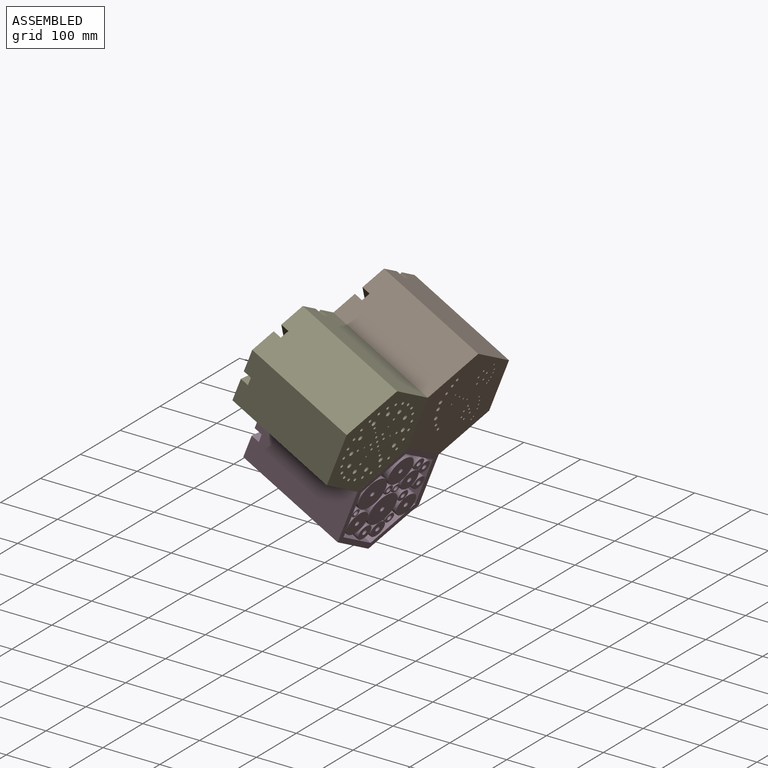
[diagram: assembled view]
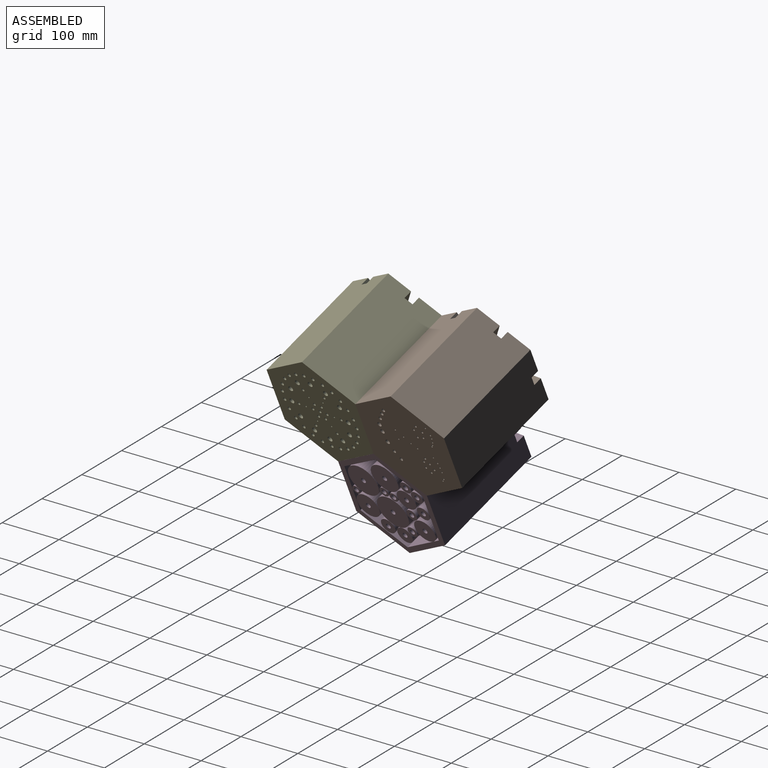
[diagram: assembled view, second angle]
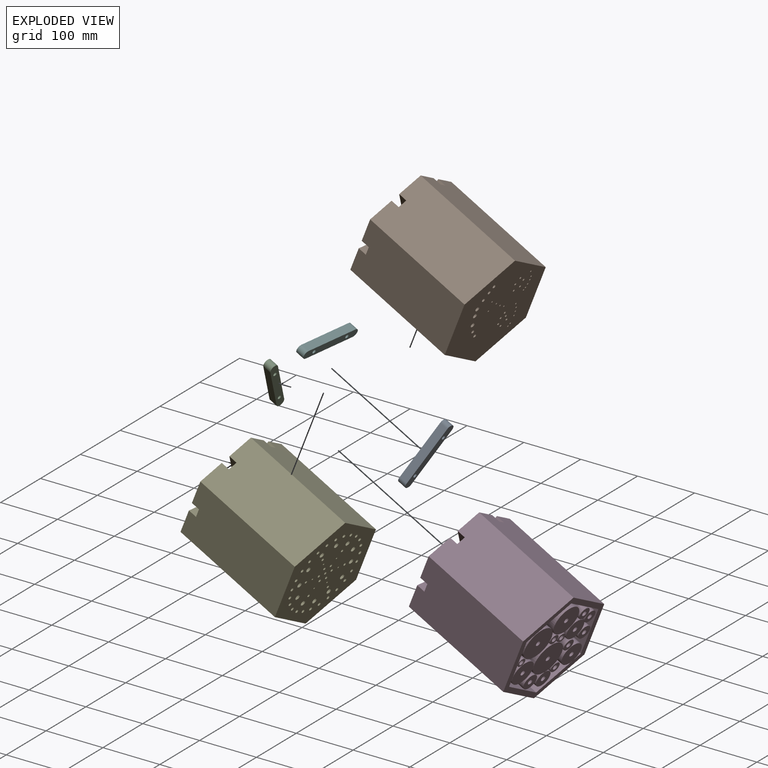
[diagram: exploded view]
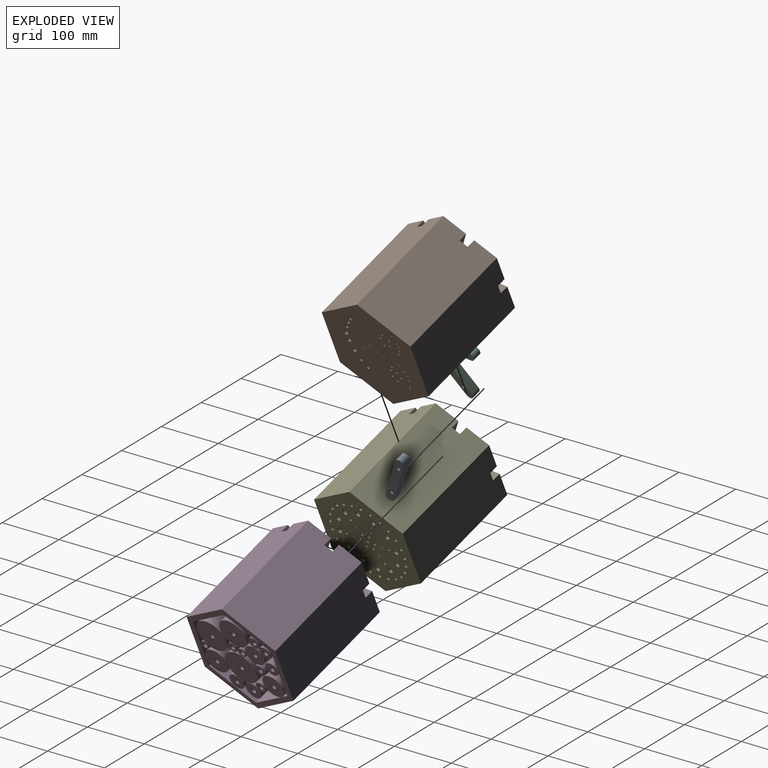
[diagram: exploded view, second angle]
ASSEMBLY  parts=6 mates=10
PART A: 10 faces, bbox 115x15x15 mm
  f0: plane 100x15mm, normal (0,1,0), area 1500mm2, adj f1,f3,f4,f5
  f1: cylinder r=7.5mm len=15mm, axis (0,0,-1), area 353.4mm2, adj f0,f2,f4,f5
  f2: plane 100x15mm, normal (0,-1,0), area 1500mm2, adj f1,f3,f4,f5
  f3: cylinder r=7.5mm len=15mm, axis (0,0,-1), area 353.4mm2, adj f0,f2,f4,f5
  f4: plane 115x15mm, normal (0,0,1), area 1556.3mm2, adj f0,f1,f2,f3,f8,f9
  f5: plane 115x15mm, normal (0,0,-1), area 1605mm2, adj f0,f1,f2,f3,f6,f7
  f6: cylinder r=3.38mm len=14mm, axis (0,0,1), area 297.2mm2, adj f5,f8
  f7: cylinder r=3.38mm len=14mm, axis (0,0,1), area 297.2mm2, adj f5,f9
  f8: cone r=3.38mm half-angle=45deg, axis (0,0,1), area 34.5mm2, adj f4,f6
  f9: cone r=3.38mm half-angle=45deg, axis (0,0,1), area 34.5mm2, adj f4,f7
PART B: 116 faces, bbox 200x173.2x200 mm
  f0: plane 200x100mm, normal (0,-1,0), area 19775mm2, adj f1,f2,f6,f7,f84,f85,f86
  f1: plane 200x173.21mm, normal (0,0,-1), area 20945.9mm2, adj f0,f2,f3,f4,f5,f6,f80,f81
  f2: plane 200x86.6mm, normal (0.87,-0.5,0), area 19775mm2, adj f0,f1,f3,f7,f89,f90,f91
  f3: plane 200x86.6mm, normal (0.87,0.5,0), area 19775mm2, adj f1,f2,f4,f7,f93,f94,f95
  f4: plane 200x100mm, normal (0,1,0), area 19775mm2, adj f1,f3,f5,f7,f97,f98,f99
  f5: plane 200x86.6mm, normal (-0.87,0.5,0), area 19775mm2, adj f1,f4,f6,f7,f101,f102,f103
  f6: plane 200x86.6mm, normal (-0.87,-0.5,0), area 19775mm2, adj f0,f1,f5,f7,f81,f82,f83
  f7: plane 200x173.21mm, normal (0,0,1), area 25430.2mm2, adj f0,f2,f3,f4,f5,f6,f9,f11
  f8: cone r=0mm half-angle=59deg, axis (0,0,1), area 8.2mm2, adj f9
  f9: cylinder r=1.5mm len=170mm, axis (0,0,1), area 1602.2mm2, adj f7,f8
  f10: cone r=0mm half-angle=59deg, axis (0,0,1), area 8.2mm2, adj f11
  f11: cylinder r=1.5mm len=170mm, axis (0,0,1), area 1602.2mm2, adj f7,f10
  f12: cone r=0mm half-angle=59deg, axis (0,0,1), area 8.2mm2, adj f13
  f13: cylinder r=1.5mm len=170mm, axis (0,0,1), area 1602.2mm2, adj f7,f12
  f14: cone r=0mm half-angle=59deg, axis (0,0,1), area 8.2mm2, adj f15
  f15: cylinder r=1.5mm len=170mm, axis (0,0,1), area 1602.2mm2, adj f7,f14
  f16: cone r=0mm half-angle=59deg, axis (0,0,1), area 8.2mm2, adj f17
  f17: cylinder r=1.5mm len=170mm, axis (0,0,1), area 1602.2mm2, adj f7,f16
  f18: cone r=0mm half-angle=59deg, axis (0,0,1), area 8.2mm2, adj f19
  f19: cylinder r=1.5mm len=170mm, axis (0,0,1), area 1602.2mm2, adj f7,f18
  f20: cone r=0mm half-angle=59deg, axis (0,0,1), area 8.2mm2, adj f21
  f21: cylinder r=1.5mm len=170mm, axis (0,0,1), area 1602.2mm2, adj f7,f20
  f22: cone r=0mm half-angle=59deg, axis (0,0,1), area 8.2mm2, adj f23
  f23: cylinder r=1.5mm len=170mm, axis (0,0,1), area 1602.2mm2, adj f7,f22
  f24: cone r=0mm half-angle=59deg, axis (0,0,1), area 8.2mm2, adj f25
  f25: cylinder r=1.5mm len=170mm, axis (0,0,1), area 1602.2mm2, adj f7,f24
  f26: cone r=0mm half-angle=59deg, axis (0,0,1), area 8.2mm2, adj f27
  f27: cylinder r=1.5mm len=170mm, axis (0,0,1), area 1602.2mm2, adj f7,f26
  f28: cone r=0mm half-angle=59deg, axis (0,0,1), area 8.2mm2, adj f29
  f29: cylinder r=1.5mm len=170mm, axis (0,0,1), area 1602.2mm2, adj f7,f28
  f30: cone r=0mm half-angle=59deg, axis (0,0,1), area 8.2mm2, adj f31
  f31: cylinder r=1.5mm len=170mm, axis (0,0,1), area 1602.2mm2, adj f7,f30
  f32: cone r=0mm half-angle=59deg, axis (0,0,1), area 8.2mm2, adj f33
  f33: cylinder r=1.5mm len=170mm, axis (0,0,1), area 1602.2mm2, adj f7,f32
  f34: cone r=0mm half-angle=59deg, axis (0,0,1), area 8.2mm2, adj f35
  f35: cylinder r=1.5mm len=170mm, axis (0,0,1), area 1602.2mm2, adj f7,f34
  f36: cone r=0mm half-angle=59deg, axis (0,0,1), area 8.2mm2, adj f37
  f37: cylinder r=1.5mm len=170mm, axis (0,0,1), area 1602.2mm2, adj f7,f36
  f38: cone r=0mm half-angle=59deg, axis (0,0,1), area 8.2mm2, adj f39
  f39: cylinder r=1.5mm len=170mm, axis (0,0,1), area 1602.2mm2, adj f7,f38
  f40: cone r=0mm half-angle=59deg, axis (0,0,1), area 8.2mm2, adj f41
  f41: cylinder r=1.5mm len=170mm, axis (0,0,1), area 1602.2mm2, adj f7,f40
  f42: cone r=0mm half-angle=59deg, axis (0,0,1), area 14.7mm2, adj f43
  f43: cylinder r=2mm len=170mm, axis (0,0,1), area 2136.3mm2, adj f7,f42
  f44: cone r=0mm half-angle=59deg, axis (0,0,1), area 14.7mm2, adj f45
  f45: cylinder r=2mm len=170mm, axis (0,0,1), area 2136.3mm2, adj f7,f44
  f46: cone r=0mm half-angle=59deg, axis (0,0,1), area 14.7mm2, adj f47
  f47: cylinder r=2mm len=170mm, axis (0,0,1), area 2136.3mm2, adj f7,f46
  f48: cone r=0mm half-angle=59deg, axis (0,0,1), area 14.7mm2, adj f49
  f49: cylinder r=2mm len=170mm, axis (0,0,1), area 2136.3mm2, adj f7,f48
  f50: cone r=0mm half-angle=59deg, axis (0,0,1), area 14.7mm2, adj f51
  f51: cylinder r=2mm len=170mm, axis (0,0,1), area 2136.3mm2, adj f7,f50
  f52: cone r=0mm half-angle=59deg, axis (0,0,1), area 14.7mm2, adj f53
  f53: cylinder r=2mm len=170mm, axis (0,0,1), area 2136.3mm2, adj f7,f52
  f54: cone r=0mm half-angle=59deg, axis (0,0,1), area 14.7mm2, adj f55
  f55: cylinder r=2mm len=170mm, axis (0,0,1), area 2136.3mm2, adj f7,f54
  f56: cone r=0mm half-angle=59deg, axis (0,0,1), area 14.7mm2, adj f57
  f57: cylinder r=2mm len=170mm, axis (0,0,1), area 2136.3mm2, adj f7,f56
  f58: cone r=0mm half-angle=59deg, axis (0,0,1), area 14.7mm2, adj f59
  f59: cylinder r=2mm len=170mm, axis (0,0,1), area 2136.3mm2, adj f7,f58
  f60: cone r=0mm half-angle=59deg, axis (0,0,1), area 14.7mm2, adj f61
  f61: cylinder r=2mm len=170mm, axis (0,0,1), area 2136.3mm2, adj f7,f60
  f62: cone r=0mm half-angle=59deg, axis (0,0,1), area 14.7mm2, adj f63
  f63: cylinder r=2mm len=170mm, axis (0,0,1), area 2136.3mm2, adj f7,f62
  f64: cone r=0mm half-angle=59deg, axis (0,0,1), area 33mm2, adj f65
  f65: cylinder r=3mm len=170mm, axis (0,0,1), area 3204.4mm2, adj f7,f64
  f66: cone r=0mm half-angle=59deg, axis (0,0,1), area 33mm2, adj f67
  f67: cylinder r=3mm len=170mm, axis (0,0,1), area 3204.4mm2, adj f7,f66
  f68: cone r=0mm half-angle=59deg, axis (0,0,1), area 33mm2, adj f69
  f69: cylinder r=3mm len=170mm, axis (0,0,1), area 3204.4mm2, adj f7,f68
  f70: cone r=0mm half-angle=59deg, axis (0,0,1), area 33mm2, adj f71
  f71: cylinder r=3mm len=170mm, axis (0,0,1), area 3204.4mm2, adj f7,f70
  f72: cone r=0mm half-angle=59deg, axis (0,0,1), area 33mm2, adj f73
  f73: cylinder r=3mm len=170mm, axis (0,0,1), area 3204.4mm2, adj f7,f72
  f74: cone r=0mm half-angle=59deg, axis (0,0,1), area 58.6mm2, adj f75
  f75: cylinder r=4mm len=170mm, axis (0,0,1), area 4272.6mm2, adj f7,f74
  f76: cone r=0mm half-angle=59deg, axis (0,0,1), area 58.6mm2, adj f77
  f77: cylinder r=4mm len=170mm, axis (0,0,1), area 4272.6mm2, adj f7,f76
  f78: cone r=0mm half-angle=59deg, axis (0,0,1), area 58.6mm2, adj f79
  f79: cylinder r=4mm len=170mm, axis (0,0,1), area 4272.6mm2, adj f7,f78
  f80: cylinder r=7.5mm len=15mm, axis (0,0,-1), area 353.4mm2, adj f1,f81,f82,f83
  f81: plane 43.31x25mm, normal (-0.5,0.87,0), area 750.1mm2, adj f1,f6,f80,f83
  f82: plane 43.31x25mm, normal (0.5,-0.87,0), area 750.1mm2, adj f1,f6,f80,f83
  f83: plane 54.56x39mm, normal (0,0,-1), area 818.8mm2, adj f6,f80,f81,f82,f115
  f84: plane 50.01x15mm, normal (1,0,0), area 750.2mm2, adj f0,f1,f86,f87
  f85: plane 50x15mm, normal (-1,0,0), area 750.1mm2, adj f0,f1,f86,f87
  f86: plane 57.51x15.02mm, normal (0,0,-1), area 818.8mm2, adj f0,f84,f85,f87,f113
  f87: cylinder r=7.5mm len=15mm, axis (0,0,-1), area 353.4mm2, adj f1,f84,f85,f86
  f88: cylinder r=7.55mm len=15mm, axis (0,0,-1), area 383.2mm2, adj f1,f89,f90,f91
  f89: plane 42.52x24.55mm, normal (-0.5,-0.87,0), area 736.5mm2, adj f1,f2,f88,f91
  f90: plane 42.52x24.55mm, normal (0.5,0.87,0), area 736.5mm2, adj f1,f2,f88,f91
  f91: plane 54.61x39.05mm, normal (0,0,-1), area 820.2mm2, adj f2,f88,f89,f90,f111
  f92: cylinder r=7.55mm len=15mm, axis (0,0,-1), area 356mm2, adj f1,f93,f94,f95
  f93: plane 42.52x24.55mm, normal (0.5,-0.87,0), area 736.5mm2, adj f1,f3,f92,f95
  f94: plane 44.09x25.46mm, normal (-0.5,0.87,0), area 763.7mm2, adj f1,f3,f92,f95
  f95: plane 54.61x39.05mm, normal (0,0,-1), area 820.1mm2, adj f3,f92,f93,f94,f109
  f96: cylinder r=7.55mm len=15.11mm, axis (0,0,-1), area 383.2mm2, adj f1,f97,f98,f99
  f97: plane 49.1x15mm, normal (1,0,0), area 736.5mm2, adj f1,f4,f96,f99
  f98: plane 49.1x15mm, normal (-1,0,0), area 736.5mm2, adj f1,f4,f96,f99
  f99: plane 57.56x15.11mm, normal (0,0,-1), area 820.2mm2, adj f4,f96,f97,f98,f107
  f100: cylinder r=7.5mm len=15mm, axis (0,0,-1), area 353.4mm2, adj f1,f101,f102,f103
  f101: plane 43.31x25mm, normal (0.5,0.87,0), area 750.1mm2, adj f1,f5,f100,f103
  f102: plane 43.31x25mm, normal (-0.5,-0.87,0), area 750.1mm2, adj f1,f5,f100,f103
  f103: plane 54.56x39mm, normal (0,0,-1), area 818.8mm2, adj f5,f100,f101,f102,f105
  f104: cone r=0mm half-angle=59deg, axis (0,0,-1), area 22.9mm2, adj f105
  f105: cylinder r=2.5mm len=8mm, axis (0,0,-1), area 125.7mm2, adj f103,f104
  f106: cone r=0mm half-angle=59deg, axis (0,0,-1), area 22.9mm2, adj f107
  f107: cylinder r=2.5mm len=8mm, axis (0,0,-1), area 125.7mm2, adj f99,f106
  f108: cone r=0mm half-angle=59deg, axis (0,0,-1), area 22.9mm2, adj f109
  f109: cylinder r=2.5mm len=8mm, axis (0,0,-1), area 125.7mm2, adj f95,f108
  f110: cone r=0mm half-angle=59deg, axis (0,0,-1), area 22.9mm2, adj f111
  f111: cylinder r=2.5mm len=8mm, axis (0,0,-1), area 125.7mm2, adj f91,f110
  f112: cone r=0mm half-angle=59deg, axis (0,0,-1), area 22.9mm2, adj f113
  f113: cylinder r=2.5mm len=8mm, axis (0,0,-1), area 125.7mm2, adj f86,f112
  f114: cone r=0mm half-angle=59deg, axis (0,0,-1), area 22.9mm2, adj f115
  f115: cylinder r=2.5mm len=8mm, axis (0,0,-1), area 125.7mm2, adj f83,f114
PART C: same geometry as A
PART D: 115 faces, bbox 200x173.2x200 mm
  f0: plane 43x43mm, normal (0,0,1), area 1388.6mm2, adj f1,f2
  f1: cylinder r=21.5mm len=170mm, axis (0,0,-1), area 22965mm2, adj f0,f22
  f2: cylinder r=4.5mm len=170mm, axis (0,0,-1), area 4806.6mm2, adj f0,f3
  f3: plane 9x9mm, normal (0,0,1), area 63.6mm2, adj f2
  f4: plane 57x57mm, normal (0,0,1), area 2488.1mm2, adj f5,f6
  f5: cylinder r=28.5mm len=170mm, axis (0,0,-1), area 30442mm2, adj f4,f22
  f6: cylinder r=4.5mm len=170mm, axis (0,0,-1), area 4806.6mm2, adj f4,f7
  f7: plane 9x9mm, normal (0,0,1), area 63.6mm2, adj f6
  f8: plane 200x100mm, normal (0,-1,0), area 19775mm2, adj f9,f10,f14,f15,f27,f28,f29
  f9: plane 200x173.21mm, normal (0,0,-1), area 20945.9mm2, adj f8,f10,f11,f12,f13,f14,f23,f24
  f10: plane 200x86.6mm, normal (0.87,-0.5,0), area 19775mm2, adj f8,f9,f11,f15,f32,f33,f34
  f11: plane 200x86.6mm, normal (0.87,0.5,0), area 19775mm2, adj f9,f10,f12,f15,f36,f37,f38
  f12: plane 200x100mm, normal (0,1,0), area 19775mm2, adj f9,f11,f13,f15,f40,f41,f42
  f13: plane 200x86.6mm, normal (-0.87,0.5,0), area 19775mm2, adj f9,f12,f14,f15,f44,f45,f46
  f14: plane 200x86.6mm, normal (-0.87,-0.5,0), area 19775mm2, adj f8,f9,f13,f15,f24,f25,f26
  f15: plane 200x173.21mm, normal (0,0,1), area 5653.6mm2, adj f8,f10,f11,f12,f13,f14,f16,f17
  f16: plane 170x76.6mm, normal (0.87,0.5,0), area 15037mm2, adj f15,f17,f21,f22
  f17: plane 170x88.45mm, normal (0,1,0), area 15037mm2, adj f15,f16,f18,f22
  f18: plane 170x76.6mm, normal (-0.87,0.5,0), area 15037mm2, adj f15,f17,f19,f22
  f19: plane 170x76.6mm, normal (-0.87,-0.5,0), area 15037mm2, adj f15,f18,f20,f22
  f20: plane 170x88.45mm, normal (0,-1,0), area 15037mm2, adj f15,f19,f21,f22
  f21: plane 170x76.6mm, normal (0.87,-0.5,0), area 15037mm2, adj f15,f16,f20,f22
  f22: plane 176.91x153.21mm, normal (0,0,1), area 5699.3mm2, adj f1,f5,f16,f17,f18,f19,f20,f21
  f23: cylinder r=7.5mm len=15mm, axis (0,0,-1), area 353.4mm2, adj f9,f24,f25,f26
  f24: plane 43.31x25mm, normal (-0.5,0.87,0), area 750.1mm2, adj f9,f14,f23,f26
  f25: plane 43.31x25mm, normal (0.5,-0.87,0), area 750.1mm2, adj f9,f14,f23,f26
  f26: plane 54.56x39mm, normal (0,0,-1), area 818.8mm2, adj f14,f23,f24,f25,f58
  f27: plane 50.01x15mm, normal (1,0,0), area 750.2mm2, adj f8,f9,f29,f30
  f28: plane 50x15mm, normal (-1,0,0), area 750.1mm2, adj f8,f9,f29,f30
  f29: plane 57.51x15.02mm, normal (0,0,-1), area 818.8mm2, adj f8,f27,f28,f30,f56
  f30: cylinder r=7.5mm len=15mm, axis (0,0,-1), area 353.4mm2, adj f9,f27,f28,f29
  f31: cylinder r=7.55mm len=15mm, axis (0,0,-1), area 383.2mm2, adj f9,f32,f33,f34
  f32: plane 42.52x24.55mm, normal (-0.5,-0.87,0), area 736.5mm2, adj f9,f10,f31,f34
  f33: plane 42.52x24.55mm, normal (0.5,0.87,0), area 736.5mm2, adj f9,f10,f31,f34
  f34: plane 54.61x39.05mm, normal (0,0,-1), area 820.2mm2, adj f10,f31,f32,f33,f54
  f35: cylinder r=7.55mm len=15mm, axis (0,0,-1), area 356mm2, adj f9,f36,f37,f38
  f36: plane 42.52x24.55mm, normal (0.5,-0.87,0), area 736.5mm2, adj f9,f11,f35,f38
  f37: plane 44.09x25.46mm, normal (-0.5,0.87,0), area 763.7mm2, adj f9,f11,f35,f38
  f38: plane 54.61x39.05mm, normal (0,0,-1), area 820.1mm2, adj f11,f35,f36,f37,f52
  f39: cylinder r=7.55mm len=15.11mm, axis (0,0,-1), area 383.2mm2, adj f9,f40,f41,f42
  f40: plane 49.1x15mm, normal (1,0,0), area 736.5mm2, adj f9,f12,f39,f42
  f41: plane 49.1x15mm, normal (-1,0,0), area 736.5mm2, adj f9,f12,f39,f42
  f42: plane 57.56x15.11mm, normal (0,0,-1), area 820.2mm2, adj f12,f39,f40,f41,f50
  f43: cylinder r=7.5mm len=15mm, axis (0,0,-1), area 353.4mm2, adj f9,f44,f45,f46
  f44: plane 43.31x25mm, normal (0.5,0.87,0), area 750.1mm2, adj f9,f13,f43,f46
  f45: plane 43.31x25mm, normal (-0.5,-0.87,0), area 750.1mm2, adj f9,f13,f43,f46
  f46: plane 54.56x39mm, normal (0,0,-1), area 818.8mm2, adj f13,f43,f44,f45,f48
  f47: cone r=0mm half-angle=59deg, axis (0,0,-1), area 22.9mm2, adj f48
  f48: cylinder r=2.5mm len=8mm, axis (0,0,-1), area 125.7mm2, adj f46,f47
  f49: cone r=0mm half-angle=59deg, axis (0,0,-1), area 22.9mm2, adj f50
  f50: cylinder r=2.5mm len=8mm, axis (0,0,-1), area 125.7mm2, adj f42,f49
  f51: cone r=0mm half-angle=59deg, axis (0,0,-1), area 22.9mm2, adj f52
  f52: cylinder r=2.5mm len=8mm, axis (0,0,-1), area 125.7mm2, adj f38,f51
  f53: cone r=0mm half-angle=59deg, axis (0,0,-1), area 22.9mm2, adj f54
  f54: cylinder r=2.5mm len=8mm, axis (0,0,-1), area 125.7mm2, adj f34,f53
  f55: cone r=0mm half-angle=59deg, axis (0,0,-1), area 22.9mm2, adj f56
  f56: cylinder r=2.5mm len=8mm, axis (0,0,-1), area 125.7mm2, adj f29,f55
  f57: cone r=0mm half-angle=59deg, axis (0,0,-1), area 22.9mm2, adj f58
  f58: cylinder r=2.5mm len=8mm, axis (0,0,-1), area 125.7mm2, adj f26,f57
  f59: plane 51x51mm, normal (0,0,1), area 1979.2mm2, adj f60,f61
  f60: cylinder r=25.5mm len=170mm, axis (0,0,-1), area 27237.6mm2, adj f22,f59
  f61: cylinder r=4.5mm len=170mm, axis (0,0,-1), area 4806.6mm2, adj f59,f62
  f62: plane 9x9mm, normal (0,0,1), area 63.6mm2, adj f61
  f63: plane 20.76x20.76mm, normal (0,0,1), area 274.9mm2, adj f64,f65
  f64: cylinder r=10.38mm len=170mm, axis (0,0,-1), area 11088.2mm2, adj f22,f63
  f65: cylinder r=4.5mm len=170mm, axis (0,0,-1), area 4806.6mm2, adj f63,f66
  f66: plane 9x9mm, normal (0,0,1), area 63.6mm2, adj f65
  f67: plane 36x36mm, normal (0,0,1), area 954.3mm2, adj f68,f69
  f68: cylinder r=18mm len=170mm, axis (0,0,-1), area 19226.5mm2, adj f22,f67
  f69: cylinder r=4.5mm len=170mm, axis (0,0,-1), area 4806.6mm2, adj f67,f70
  f70: plane 9x9mm, normal (0,0,1), area 63.6mm2, adj f69
  f71: plane 15x15mm, normal (0,0,1), area 113.1mm2, adj f72,f73
  f72: cylinder r=7.5mm len=170mm, axis (0,0,-1), area 8011.1mm2, adj f22,f71
  f73: cylinder r=4.5mm len=170mm, axis (0,0,-1), area 4806.6mm2, adj f71,f74
  f74: plane 9x9mm, normal (0,0,1), area 63.6mm2, adj f73
  f75: plane 29x29mm, normal (0,0,1), area 596.9mm2, adj f76,f77
  f76: cylinder r=14.5mm len=170mm, axis (0,0,-1), area 15488.1mm2, adj f22,f75
  f77: cylinder r=4.5mm len=170mm, axis (0,0,-1), area 4806.6mm2, adj f75,f78
  f78: plane 9x9mm, normal (0,0,1), area 63.6mm2, adj f77
  f79: plane 20x20mm, normal (0,0,1), area 250.5mm2, adj f80,f81
  f80: cylinder r=10mm len=170mm, axis (0,0,-1), area 10681.4mm2, adj f22,f79
  f81: cylinder r=4.5mm len=170mm, axis (0,0,-1), area 4806.6mm2, adj f79,f82
  f82: plane 9x9mm, normal (0,0,1), area 63.6mm2, adj f81
  f83: plane 27x27mm, normal (0,0,1), area 508.9mm2, adj f84,f85
  f84: cylinder r=13.5mm len=170mm, axis (0,0,-1), area 14419.9mm2, adj f22,f83
  f85: cylinder r=4.5mm len=170mm, axis (0,0,-1), area 4806.6mm2, adj f83,f86
  f86: plane 9x9mm, normal (0,0,1), area 63.6mm2, adj f85
  f87: plane 40x40mm, normal (0,0,1), area 1193mm2, adj f88,f89
  f88: cylinder r=20mm len=170mm, axis (0,0,-1), area 21362.8mm2, adj f22,f87
  f89: cylinder r=4.5mm len=170mm, axis (0,0,-1), area 4806.6mm2, adj f87,f90
  f90: plane 9x9mm, normal (0,0,1), area 63.6mm2, adj f89
  f91: plane 16x16mm, normal (0,0,1), area 137.4mm2, adj f92,f93
  f92: cylinder r=8mm len=170mm, axis (0,0,-1), area 8545.1mm2, adj f22,f91
  f93: cylinder r=4.5mm len=170mm, axis (0,0,-1), area 4806.6mm2, adj f91,f94
  f94: plane 9x9mm, normal (0,0,1), area 63.6mm2, adj f93
  f95: plane 18x18mm, normal (0,0,1), area 190.9mm2, adj f96,f97
  f96: cylinder r=9mm len=170mm, axis (0,0,-1), area 9613.3mm2, adj f22,f95
  f97: cylinder r=4.5mm len=170mm, axis (0,0,-1), area 4806.6mm2, adj f95,f98
  f98: plane 9x9mm, normal (0,0,1), area 63.6mm2, adj f97
  f99: plane 59x59mm, normal (0,0,1), area 2670.4mm2, adj f100,f101
  f100: cylinder r=29.5mm len=170mm, axis (0,0,-1), area 31510.2mm2, adj f22,f99
  f101: cylinder r=4.5mm len=170mm, axis (0,0,-1), area 4806.6mm2, adj f99,f102
  f102: plane 9x9mm, normal (0,0,1), area 63.6mm2, adj f101
  f103: plane 17x17mm, normal (0,0,1), area 163.4mm2, adj f104,f105
  f104: cylinder r=8.5mm len=170mm, axis (0,0,-1), area 9079.2mm2, adj f22,f103
  f105: cylinder r=4.5mm len=170mm, axis (0,0,-1), area 4806.6mm2, adj f103,f106
  f106: plane 9x9mm, normal (0,0,1), area 63.6mm2, adj f105
  f107: plane 23.87x23.87mm, normal (0,0,1), area 383.9mm2, adj f108,f109
  f108: cylinder r=11.94mm len=170mm, axis (0,0,-1), area 12748.3mm2, adj f22,f107
  f109: cylinder r=4.5mm len=170mm, axis (0,0,-1), area 4806.6mm2, adj f107,f110
  f110: plane 9x9mm, normal (0,0,1), area 63.6mm2, adj f109
  f111: plane 22x22mm, normal (0,0,1), area 316.5mm2, adj f112,f113
  f112: cylinder r=11mm len=170mm, axis (0,0,-1), area 11749.6mm2, adj f22,f111
  f113: cylinder r=4.5mm len=170mm, axis (0,0,-1), area 4806.6mm2, adj f111,f114
  f114: plane 9x9mm, normal (0,0,1), area 63.6mm2, adj f113
PART E: 158 faces, bbox 200x173.2x200 mm
  f0: plane 200x100mm, normal (0,-1,0), area 19775mm2, adj f1,f2,f6,f7,f12,f13,f14
  f1: plane 200x173.21mm, normal (0,0,-1), area 20945.9mm2, adj f0,f2,f3,f4,f5,f6,f8,f9
  f2: plane 200x86.6mm, normal (0.87,-0.5,0), area 19775mm2, adj f0,f1,f3,f7,f17,f18,f19
  f3: plane 200x86.6mm, normal (0.87,0.5,0), area 19775mm2, adj f1,f2,f4,f7,f21,f22,f23
  f4: plane 200x100mm, normal (0,1,0), area 19775mm2, adj f1,f3,f5,f7,f25,f26,f27
  f5: plane 200x86.6mm, normal (-0.87,0.5,0), area 19775mm2, adj f1,f4,f6,f7,f29,f30,f31
  f6: plane 200x86.6mm, normal (-0.87,-0.5,0), area 19775mm2, adj f0,f1,f5,f7,f9,f10,f11
  f7: plane 200x173.21mm, normal (0,0,1), area 24212.8mm2, adj f0,f2,f3,f4,f5,f6,f33,f37
  f8: cylinder r=7.5mm len=15mm, axis (0,0,-1), area 353.4mm2, adj f1,f9,f10,f11
  f9: plane 43.31x25mm, normal (-0.5,0.87,0), area 750.1mm2, adj f1,f6,f8,f11
  f10: plane 43.31x25mm, normal (0.5,-0.87,0), area 750.1mm2, adj f1,f6,f8,f11
  f11: plane 54.56x39mm, normal (0,0,-1), area 818.8mm2, adj f6,f8,f9,f10,f157
  f12: plane 50.01x15mm, normal (1,0,0), area 750.2mm2, adj f0,f1,f14,f15
  f13: plane 50x15mm, normal (-1,0,0), area 750.1mm2, adj f0,f1,f14,f15
  f14: plane 57.51x15.02mm, normal (0,0,-1), area 818.8mm2, adj f0,f12,f13,f15,f155
  f15: cylinder r=7.5mm len=15mm, axis (0,0,-1), area 353.4mm2, adj f1,f12,f13,f14
  f16: cylinder r=7.55mm len=15mm, axis (0,0,-1), area 383.2mm2, adj f1,f17,f18,f19
  f17: plane 42.52x24.55mm, normal (-0.5,-0.87,0), area 736.5mm2, adj f1,f2,f16,f19
  f18: plane 42.52x24.55mm, normal (0.5,0.87,0), area 736.5mm2, adj f1,f2,f16,f19
  f19: plane 54.61x39.05mm, normal (0,0,-1), area 820.2mm2, adj f2,f16,f17,f18,f153
  f20: cylinder r=7.55mm len=15mm, axis (0,0,-1), area 356mm2, adj f1,f21,f22,f23
  f21: plane 42.52x24.55mm, normal (0.5,-0.87,0), area 736.5mm2, adj f1,f3,f20,f23
  f22: plane 44.09x25.46mm, normal (-0.5,0.87,0), area 763.7mm2, adj f1,f3,f20,f23
  f23: plane 54.61x39.05mm, normal (0,0,-1), area 820.1mm2, adj f3,f20,f21,f22,f151
  f24: cylinder r=7.55mm len=15.11mm, axis (0,0,-1), area 383.2mm2, adj f1,f25,f26,f27
  f25: plane 49.1x15mm, normal (1,0,0), area 736.5mm2, adj f1,f4,f24,f27
  f26: plane 49.1x15mm, normal (-1,0,0), area 736.5mm2, adj f1,f4,f24,f27
  f27: plane 57.56x15.11mm, normal (0,0,-1), area 820.2mm2, adj f4,f24,f25,f26,f149
  f28: cylinder r=7.5mm len=15mm, axis (0,0,-1), area 353.4mm2, adj f1,f29,f30,f31
  f29: plane 43.31x25mm, normal (0.5,0.87,0), area 750.1mm2, adj f1,f5,f28,f31
  f30: plane 43.31x25mm, normal (-0.5,-0.87,0), area 750.1mm2, adj f1,f5,f28,f31
  f31: plane 54.56x39mm, normal (0,0,-1), area 818.8mm2, adj f5,f28,f29,f30,f147
  f32: plane 5.58x5mm, normal (0,0,1), area 22.5mm2, adj f33,f34
  f33: cylinder r=2.5mm len=185mm, axis (0,0,-1), area 1667.6mm2, adj f7,f32,f34,f35
  f34: cylinder r=2.5mm len=170mm, axis (0,0,-1), area 1433.5mm2, adj f32,f33,f35
  f35: cone r=0mm half-angle=59deg, axis (0,0,-1), area 3.4mm2, adj f33,f34
  f36: cone r=0mm half-angle=59deg, axis (0,0,1), area 22.9mm2, adj f37
  f37: cylinder r=2.5mm len=170mm, axis (0,0,1), area 2670.4mm2, adj f7,f36
  f38: cone r=0mm half-angle=59deg, axis (0,0,1), area 22.9mm2, adj f39
  f39: cylinder r=2.5mm len=170mm, axis (0,0,1), area 2670.4mm2, adj f7,f38
  f40: cone r=0mm half-angle=59deg, axis (0,0,1), area 22.9mm2, adj f41
  f41: cylinder r=2.5mm len=170mm, axis (0,0,1), area 2670.4mm2, adj f7,f40
  f42: cone r=0mm half-angle=59deg, axis (0,0,1), area 22.9mm2, adj f43
  f43: cylinder r=2.5mm len=170mm, axis (0,0,1), area 2670.4mm2, adj f7,f42
  f44: cone r=0mm half-angle=59deg, axis (0,0,1), area 22.9mm2, adj f45
  f45: cylinder r=2.5mm len=170mm, axis (0,0,1), area 2670.4mm2, adj f7,f44
  f46: cone r=0mm half-angle=59deg, axis (0,0,1), area 22.9mm2, adj f47
  f47: cylinder r=2.5mm len=170mm, axis (0,0,1), area 2670.4mm2, adj f7,f46
  f48: cone r=0mm half-angle=59deg, axis (0,0,1), area 74.2mm2, adj f49
  f49: cylinder r=4.5mm len=170mm, axis (0,0,1), area 4806.6mm2, adj f7,f48
  f50: cone r=0mm half-angle=59deg, axis (0,0,1), area 74.2mm2, adj f51
  f51: cylinder r=4.5mm len=170mm, axis (0,0,1), area 4806.6mm2, adj f7,f50
  f52: cone r=0mm half-angle=59deg, axis (0,0,1), area 74.2mm2, adj f53
  f53: cylinder r=4.5mm len=170mm, axis (0,0,1), area 4806.6mm2, adj f7,f52
  f54: cone r=0mm half-angle=59deg, axis (0,0,1), area 74.2mm2, adj f55
  f55: cylinder r=4.5mm len=170mm, axis (0,0,1), area 4806.6mm2, adj f7,f54
  f56: cone r=0mm half-angle=59deg, axis (0,0,1), area 74.2mm2, adj f57
  f57: cylinder r=4.5mm len=170mm, axis (0,0,1), area 4806.6mm2, adj f7,f56
  f58: cone r=0mm half-angle=59deg, axis (0,0,1), area 74.2mm2, adj f59
  f59: cylinder r=4.5mm len=170mm, axis (0,0,1), area 4806.6mm2, adj f7,f58
  f60: cone r=0mm half-angle=59deg, axis (0,0,1), area 74.2mm2, adj f61
  f61: cylinder r=4.5mm len=170mm, axis (0,0,1), area 4806.6mm2, adj f7,f60
  f62: cone r=0mm half-angle=59deg, axis (0,0,1), area 74.2mm2, adj f63
  f63: cylinder r=4.5mm len=170mm, axis (0,0,1), area 4806.6mm2, adj f7,f62
  f64: cone r=0mm half-angle=59deg, axis (0,0,1), area 74.2mm2, adj f65
  f65: cylinder r=4.5mm len=170mm, axis (0,0,1), area 4806.6mm2, adj f7,f64
  f66: cone r=0mm half-angle=59deg, axis (0,0,1), area 74.2mm2, adj f67
  f67: cylinder r=4.5mm len=170mm, axis (0,0,1), area 4806.6mm2, adj f7,f66
  f68: cone r=0mm half-angle=59deg, axis (0,0,1), area 74.2mm2, adj f69
  f69: cylinder r=4.5mm len=170mm, axis (0,0,1), area 4806.6mm2, adj f7,f68
  f70: cone r=0mm half-angle=59deg, axis (0,0,1), area 74.2mm2, adj f71
  f71: cylinder r=4.5mm len=170mm, axis (0,0,1), area 4806.6mm2, adj f7,f70
  f72: cone r=0mm half-angle=59deg, axis (0,0,1), area 8.2mm2, adj f73
  f73: cylinder r=1.5mm len=170mm, axis (0,0,1), area 1602.2mm2, adj f7,f72
  f74: cone r=0mm half-angle=59deg, axis (0,0,1), area 8.2mm2, adj f75
  f75: cylinder r=1.5mm len=170mm, axis (0,0,1), area 1602.2mm2, adj f7,f74
  f76: cone r=0mm half-angle=59deg, axis (0,0,1), area 8.2mm2, adj f77
  f77: cylinder r=1.5mm len=170mm, axis (0,0,1), area 1602.2mm2, adj f7,f76
  f78: cone r=0mm half-angle=59deg, axis (0,0,1), area 8.2mm2, adj f79
  f79: cylinder r=1.5mm len=170mm, axis (0,0,1), area 1602.2mm2, adj f7,f78
  f80: cone r=0mm half-angle=59deg, axis (0,0,1), area 8.2mm2, adj f81
  f81: cylinder r=1.5mm len=170mm, axis (0,0,1), area 1602.2mm2, adj f7,f80
  f82: cone r=0mm half-angle=59deg, axis (0,0,1), area 8.2mm2, adj f83
  f83: cylinder r=1.5mm len=170mm, axis (0,0,1), area 1602.2mm2, adj f7,f82
  f84: cone r=0mm half-angle=59deg, axis (0,0,1), area 22.9mm2, adj f85
  f85: cylinder r=2.5mm len=170mm, axis (0,0,1), area 2670.4mm2, adj f7,f84
  f86: cone r=0mm half-angle=59deg, axis (0,0,1), area 22.9mm2, adj f87
  f87: cylinder r=2.5mm len=170mm, axis (0,0,1), area 2670.4mm2, adj f7,f86
  f88: cone r=0mm half-angle=59deg, axis (0,0,1), area 22.9mm2, adj f89
  f89: cylinder r=2.5mm len=170mm, axis (0,0,1), area 2670.4mm2, adj f7,f88
  f90: cone r=0mm half-angle=59deg, axis (0,0,1), area 22.9mm2, adj f91
  f91: cylinder r=2.5mm len=170mm, axis (0,0,1), area 2670.4mm2, adj f7,f90
  f92: cone r=0mm half-angle=59deg, axis (0,0,1), area 22.9mm2, adj f93
  f93: cylinder r=2.5mm len=170mm, axis (0,0,1), area 2670.4mm2, adj f7,f92
  f94: cone r=0mm half-angle=59deg, axis (0,0,1), area 22.9mm2, adj f95
  f95: cylinder r=2.5mm len=170mm, axis (0,0,1), area 2670.4mm2, adj f7,f94
  f96: cone r=0mm half-angle=59deg, axis (0,0,1), area 33mm2, adj f97
  f97: cylinder r=3mm len=170mm, axis (0,0,1), area 3204.4mm2, adj f7,f96
  f98: cone r=0mm half-angle=59deg, axis (0,0,1), area 33mm2, adj f99
  f99: cylinder r=3mm len=170mm, axis (0,0,1), area 3204.4mm2, adj f7,f98
  f100: cone r=0mm half-angle=59deg, axis (0,0,1), area 33mm2, adj f101
  f101: cylinder r=3mm len=170mm, axis (0,0,1), area 3204.4mm2, adj f7,f100
  f102: cone r=0mm half-angle=59deg, axis (0,0,1), area 33mm2, adj f103
  f103: cylinder r=3mm len=170mm, axis (0,0,1), area 3204.4mm2, adj f7,f102
  f104: cone r=0mm half-angle=59deg, axis (0,0,1), area 33mm2, adj f105
  f105: cylinder r=3mm len=170mm, axis (0,0,1), area 3204.4mm2, adj f7,f104
  f106: cone r=0mm half-angle=59deg, axis (0,0,1), area 33mm2, adj f107
  f107: cylinder r=3mm len=170mm, axis (0,0,1), area 3204.4mm2, adj f7,f106
  f108: cone r=0mm half-angle=59deg, axis (0,0,1), area 33mm2, adj f109
  f109: cylinder r=3mm len=170mm, axis (0,0,1), area 3204.4mm2, adj f7,f108
  f110: cone r=0mm half-angle=59deg, axis (0,0,1), area 33mm2, adj f111
  f111: cylinder r=3mm len=170mm, axis (0,0,1), area 3204.4mm2, adj f7,f110
  f112: cone r=0mm half-angle=59deg, axis (0,0,1), area 33mm2, adj f113
  f113: cylinder r=3mm len=170mm, axis (0,0,1), area 3204.4mm2, adj f7,f112
  f114: cone r=0mm half-angle=59deg, axis (0,0,1), area 33mm2, adj f115
  f115: cylinder r=3mm len=170mm, axis (0,0,1), area 3204.4mm2, adj f7,f114
  f116: cone r=0mm half-angle=59deg, axis (0,0,1), area 33mm2, adj f117
  f117: cylinder r=3mm len=170mm, axis (0,0,1), area 3204.4mm2, adj f7,f116
  f118: cone r=0mm half-angle=59deg, axis (0,0,1), area 33mm2, adj f119
  f119: cylinder r=3mm len=170mm, axis (0,0,1), area 3204.4mm2, adj f7,f118
  f120: cone r=0mm half-angle=59deg, axis (0,0,1), area 33mm2, adj f121
  f121: cylinder r=3mm len=170mm, axis (0,0,1), area 3204.4mm2, adj f7,f120
  f122: cone r=0mm half-angle=59deg, axis (0,0,1), area 33mm2, adj f123
  f123: cylinder r=3mm len=170mm, axis (0,0,1), area 3204.4mm2, adj f7,f122
  f124: cone r=0mm half-angle=59deg, axis (0,0,1), area 33mm2, adj f125
  f125: cylinder r=3mm len=170mm, axis (0,0,1), area 3204.4mm2, adj f7,f124
  f126: cone r=0mm half-angle=59deg, axis (0,0,1), area 33mm2, adj f127
  f127: cylinder r=3mm len=170mm, axis (0,0,1), area 3204.4mm2, adj f7,f126
  f128: cone r=0mm half-angle=59deg, axis (0,0,1), area 33mm2, adj f129
  f129: cylinder r=3mm len=170mm, axis (0,0,1), area 3204.4mm2, adj f7,f128
  f130: cone r=0mm half-angle=59deg, axis (0,0,1), area 33mm2, adj f131
  f131: cylinder r=3mm len=170mm, axis (0,0,1), area 3204.4mm2, adj f7,f130
  f132: cone r=0mm half-angle=59deg, axis (0,0,1), area 33mm2, adj f133
  f133: cylinder r=3mm len=170mm, axis (0,0,1), area 3204.4mm2, adj f7,f132
  f134: cone r=0mm half-angle=59deg, axis (0,0,1), area 33mm2, adj f135
  f135: cylinder r=3mm len=170mm, axis (0,0,1), area 3204.4mm2, adj f7,f134
  f136: cone r=0mm half-angle=59deg, axis (0,0,1), area 33mm2, adj f137
  f137: cylinder r=3mm len=170mm, axis (0,0,1), area 3204.4mm2, adj f7,f136
  f138: cone r=0mm half-angle=59deg, axis (0,0,1), area 33mm2, adj f139
  f139: cylinder r=3mm len=170mm, axis (0,0,1), area 3204.4mm2, adj f7,f138
  f140: cone r=0mm half-angle=59deg, axis (0,0,1), area 33mm2, adj f141
  f141: cylinder r=3mm len=170mm, axis (0,0,1), area 3204.4mm2, adj f7,f140
  f142: cone r=0mm half-angle=59deg, axis (0,0,1), area 33mm2, adj f143
  f143: cylinder r=3mm len=170mm, axis (0,0,1), area 3204.4mm2, adj f7,f142
  f144: cone r=0mm half-angle=59deg, axis (0,0,1), area 33mm2, adj f145
  f145: cylinder r=3mm len=170mm, axis (0,0,1), area 3204.4mm2, adj f7,f144
  f146: cone r=0mm half-angle=59deg, axis (0,0,-1), area 22.9mm2, adj f147
  f147: cylinder r=2.5mm len=8mm, axis (0,0,-1), area 125.7mm2, adj f31,f146
  f148: cone r=0mm half-angle=59deg, axis (0,0,-1), area 22.9mm2, adj f149
  f149: cylinder r=2.5mm len=8mm, axis (0,0,-1), area 125.7mm2, adj f27,f148
  f150: cone r=0mm half-angle=59deg, axis (0,0,-1), area 22.9mm2, adj f151
  f151: cylinder r=2.5mm len=8mm, axis (0,0,-1), area 125.7mm2, adj f23,f150
  f152: cone r=0mm half-angle=59deg, axis (0,0,-1), area 22.9mm2, adj f153
  f153: cylinder r=2.5mm len=8mm, axis (0,0,-1), area 125.7mm2, adj f19,f152
  f154: cone r=0mm half-angle=59deg, axis (0,0,-1), area 22.9mm2, adj f155
  f155: cylinder r=2.5mm len=8mm, axis (0,0,-1), area 125.7mm2, adj f14,f154
  f156: cone r=0mm half-angle=59deg, axis (0,0,-1), area 22.9mm2, adj f157
  f157: cylinder r=2.5mm len=8mm, axis (0,0,-1), area 125.7mm2, adj f11,f156
PART F: same geometry as A
PLACE A rot(axis=(-0.31,-0.91,0.28),70.5deg) t=(7,-24.52,101.73)mm
PLACE B rot(axis=(0.07,1,-0.04),113deg) t=(27.72,16.43,176.68)mm
PLACE C rot(axis=(-0.56,-0.11,0.82),149deg) t=(-4.27,-110.39,101.73)mm
PLACE D rot(axis=(0.78,0.39,0.48),144.2deg) t=(-41.15,-61.87,38.39)mm
PLACE E rot(axis=(0.06,1,-0.04),113deg) t=(5.2,-155.3,176.73)mm
PLACE F rot(axis=(0.44,-0.5,-0.75),113.3deg) t=(30.17,-71.24,170.89)mm
MATE parallel F.f2 <-> B.f85  axis (-0.38,0.05,-0.92) through (20.43,-69.96,166.88)mm
MATE parallel F.f2 <-> E.f26  axis (-0.38,0.05,-0.92) through (20.43,-69.96,166.88)mm
MATE planar D.f9 <-> A.f4  axis (-0.91,0.12,0.39) through (-18.84,22.54,64.9)mm
MATE cylindrical B.f110 <-> A.f6  axis (-0.91,0.12,0.39) through (20.91,-8.7,129.67)mm
MATE cylindrical E.f148 <-> F.f6  axis (-0.91,0.12,0.39) through (25.62,-105.94,170.9)mm
MATE planar F.f5 <-> B.f87  axis (0.91,-0.12,-0.39) through (30.17,-71.24,170.89)mm
MATE planar E.f27 <-> F.f5  axis (-0.91,0.12,0.39) through (26.55,-98.85,170.9)mm
MATE parallel D.f36 <-> A.f2  axis (-0.08,0.88,-0.46) through (-9.03,-41.35,88.49)mm
MATE cylindrical D.f51 <-> A.f7  axis (-0.91,0.12,0.39) through (0.39,-41.3,70.68)mm
MATE cylindrical F.f7 <-> B.f112  axis (-0.91,0.12,0.39) through (28.32,-35.69,173.58)mm
